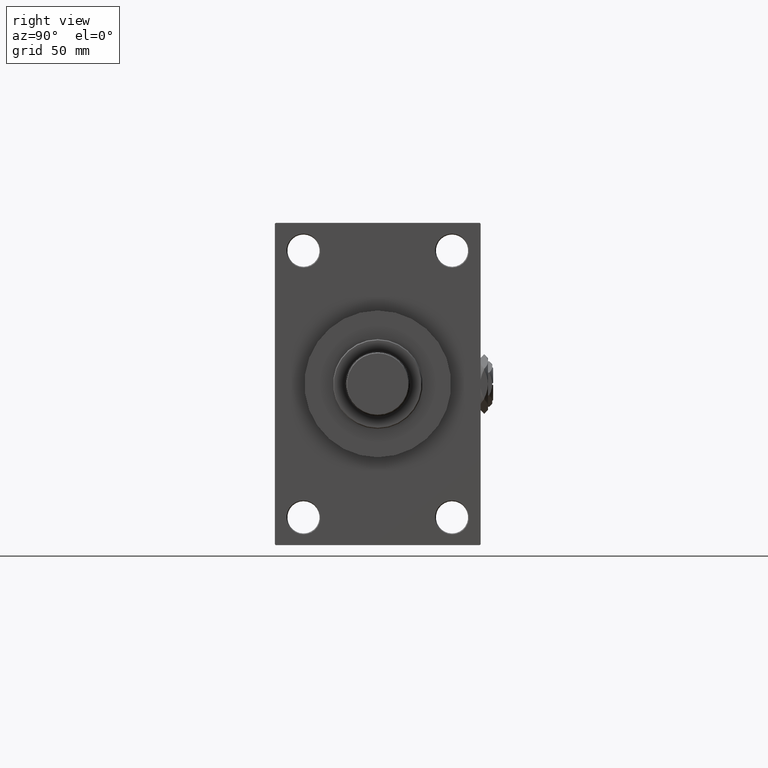
[diagram: clean part render]
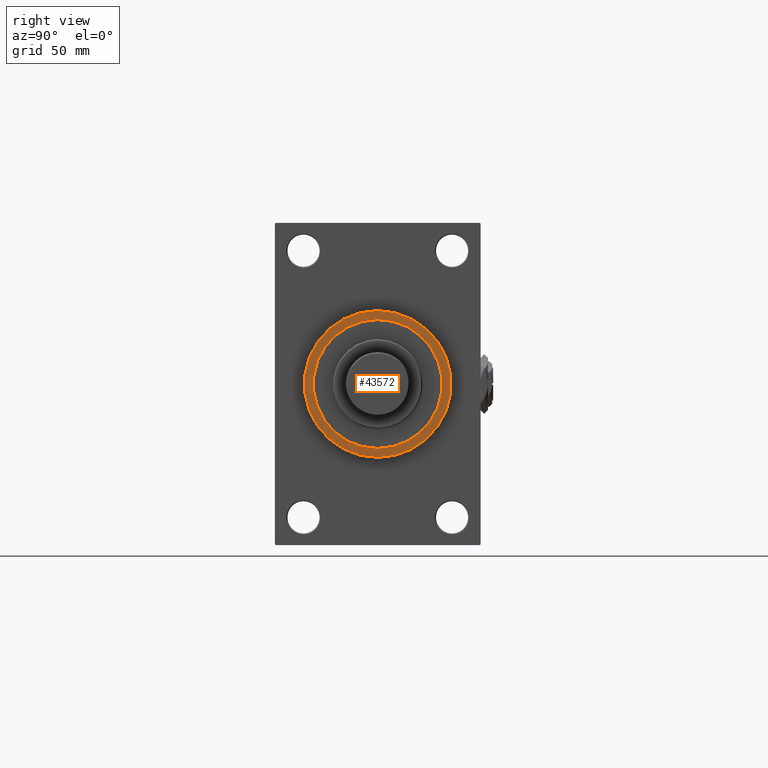
[diagram: same view with one face highlighted and labeled with its STEP entity id]
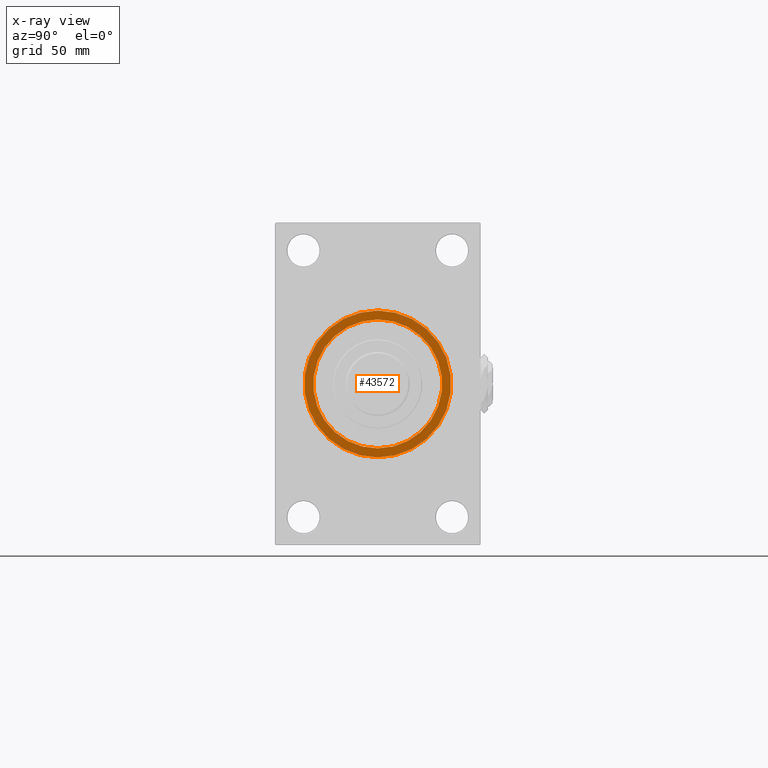
[diagram: x-ray of the same camera — body ghosted, the highlighted face saturated]
A machine part, right view. The second image highlights one B-rep face of the part: STEP entity #43572.
The next image is the same camera in x-ray: the body ghosted, the highlighted face saturated — about 0% of this face is hidden behind the body in this view.
In plain terms, the highlighted planar face has unit normal (1, 0, 0).
Its self-contained STEP definition (entity closure, byte-faithful):
#1175 = ORIENTED_EDGE ( 'NONE', *, *, #44121, .T. ) ;
#1783 = CARTESIAN_POINT ( 'NONE',  ( 259.0000000000000000, 4.408728476930470856E-15, 36.00000000000000000 ) ) ;
#2605 = ORIENTED_EDGE ( 'NONE', *, *, #41311, .F. ) ;
#2705 = FACE_BOUND ( 'NONE', #44371, .T. ) ;
#3110 = DIRECTION ( 'NONE',  ( 0.000000000000000000, 0.000000000000000000, -1.000000000000000000 ) ) ;
#3503 = DIRECTION ( 'NONE',  ( 0.000000000000000000, 0.000000000000000000, -1.000000000000000000 ) ) ;
#6551 = CARTESIAN_POINT ( 'NONE',  ( 259.0000000000000000, 0.000000000000000000, 0.000000000000000000 ) ) ;
#7194 = VERTEX_POINT ( 'NONE', #19242 ) ;
#8868 = DIRECTION ( 'NONE',  ( 0.000000000000000000, 0.000000000000000000, -1.000000000000000000 ) ) ;
#9435 = ORIENTED_EDGE ( 'NONE', *, *, #43159, .T. ) ;
#10547 = CARTESIAN_POINT ( 'NONE',  ( 259.0000000000000000, 0.000000000000000000, 0.000000000000000000 ) ) ;
#11279 = DIRECTION ( 'NONE',  ( 1.000000000000000000, 0.000000000000000000, 0.000000000000000000 ) ) ;
#11684 = CARTESIAN_POINT ( 'NONE',  ( 259.0000000000000000, 0.000000000000000000, 41.00000000000000000 ) ) ;
#12435 = CIRCLE ( 'NONE', #18939, 41.00000000000000000 ) ;
#14164 = DIRECTION ( 'NONE',  ( 0.000000000000000000, 0.000000000000000000, -1.000000000000000000 ) ) ;
#17334 = AXIS2_PLACEMENT_3D ( 'NONE', #37403, #49109, #3503 ) ;
#18189 = FACE_OUTER_BOUND ( 'NONE', #22020, .T. ) ;
#18756 = VERTEX_POINT ( 'NONE', #37469 ) ;
#18939 = AXIS2_PLACEMENT_3D ( 'NONE', #6551, #37092, #14164 ) ;
#19242 = CARTESIAN_POINT ( 'NONE',  ( 259.0000000000000000, 5.021051876504148963E-15, -41.00000000000000000 ) ) ;
#19981 = AXIS2_PLACEMENT_3D ( 'NONE', #46065, #37934, #3110 ) ;
#22020 = EDGE_LOOP ( 'NONE', ( #9435, #1175 ) ) ;
#22197 = EDGE_CURVE ( 'NONE', #33336, #18756, #30521, .T. ) ;
#23549 = VERTEX_POINT ( 'NONE', #11684 ) ;
#29406 = AXIS2_PLACEMENT_3D ( 'NONE', #43975, #36590, #8868 ) ;
#30514 = ORIENTED_EDGE ( 'NONE', *, *, #22197, .F. ) ;
#30521 = CIRCLE ( 'NONE', #19981, 36.00000000000000000 ) ;
#31138 = AXIS2_PLACEMENT_3D ( 'NONE', #10547, #11279, #49465 ) ;
#33336 = VERTEX_POINT ( 'NONE', #1783 ) ;
#36590 = DIRECTION ( 'NONE',  ( 1.000000000000000000, 0.000000000000000000, 0.000000000000000000 ) ) ;
#37092 = DIRECTION ( 'NONE',  ( 1.000000000000000000, 0.000000000000000000, 0.000000000000000000 ) ) ;
#37403 = CARTESIAN_POINT ( 'NONE',  ( 259.0000000000000000, 0.000000000000000000, 0.000000000000000000 ) ) ;
#37469 = CARTESIAN_POINT ( 'NONE',  ( 259.0000000000000000, 0.000000000000000000, -36.00000000000000000 ) ) ;
#37934 = DIRECTION ( 'NONE',  ( 1.000000000000000000, 0.000000000000000000, 0.000000000000000000 ) ) ;
#40805 = CIRCLE ( 'NONE', #29406, 36.00000000000000000 ) ;
#41311 = EDGE_CURVE ( 'NONE', #18756, #33336, #40805, .T. ) ;
#42082 = PLANE ( 'NONE',  #31138 ) ;
#43159 = EDGE_CURVE ( 'NONE', #23549, #7194, #12435, .T. ) ;
#43572 = ADVANCED_FACE ( 'NONE', ( #2705, #18189 ), #42082, .T. ) ;
#43975 = CARTESIAN_POINT ( 'NONE',  ( 259.0000000000000000, 0.000000000000000000, 0.000000000000000000 ) ) ;
#44121 = EDGE_CURVE ( 'NONE', #7194, #23549, #49012, .T. ) ;
#44371 = EDGE_LOOP ( 'NONE', ( #2605, #30514 ) ) ;
#46065 = CARTESIAN_POINT ( 'NONE',  ( 259.0000000000000000, 0.000000000000000000, 0.000000000000000000 ) ) ;
#49012 = CIRCLE ( 'NONE', #17334, 41.00000000000000000 ) ;
#49109 = DIRECTION ( 'NONE',  ( 1.000000000000000000, 0.000000000000000000, 0.000000000000000000 ) ) ;
#49465 = DIRECTION ( 'NONE',  ( 0.000000000000000000, 0.000000000000000000, -1.000000000000000000 ) ) ;